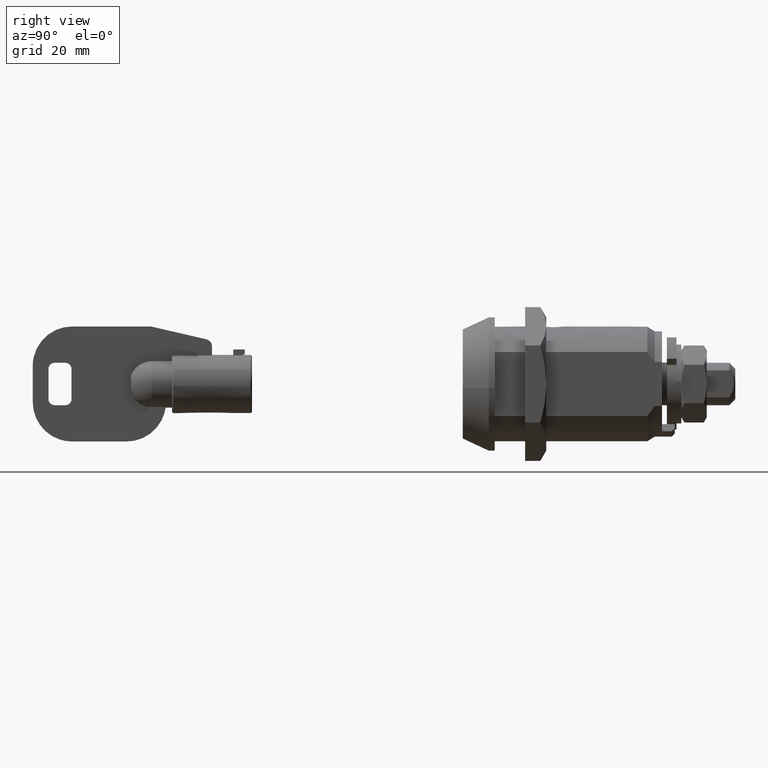
[diagram: clean part render]
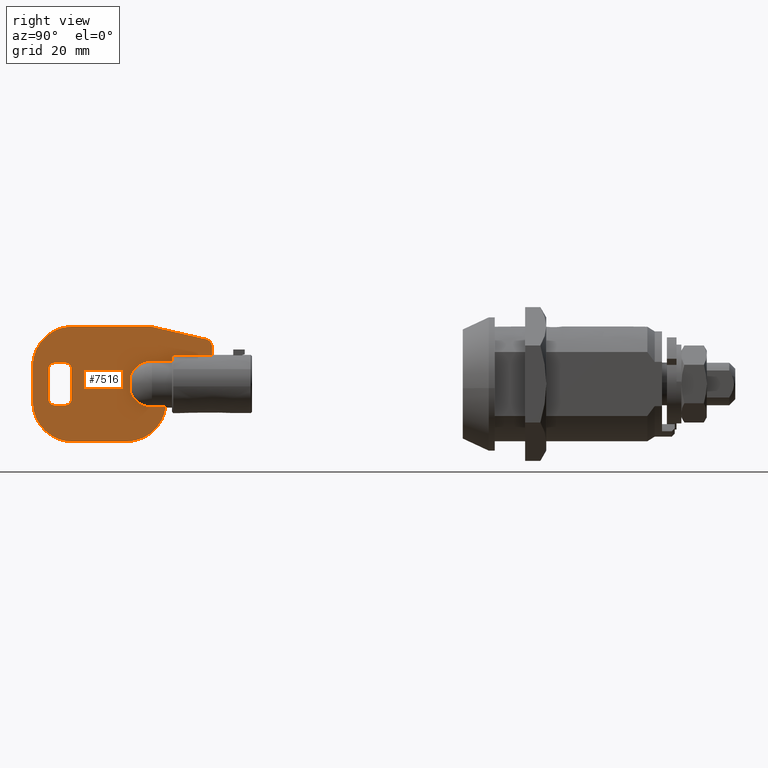
[diagram: same view with one face highlighted and labeled with its STEP entity id]
A machine part, right view. The second image highlights one B-rep face of the part: STEP entity #7516.
In plain terms, the highlighted face is a freeform B-spline surface patch.
Its self-contained STEP definition (entity closure, byte-faithful):
#5973=CARTESIAN_POINT('',(-47.788700000000013,-0.900000000000000,4.714857876982400));
#5974=VERTEX_POINT('',#5973);
#6035=CARTESIAN_POINT('',(-41.388698999723701,-0.900000000000000,4.714857876982400));
#6036=VERTEX_POINT('',#6035);
#6050=CARTESIAN_POINT('',(-47.788700000000013,-0.900000000000000,4.714857876982400));
#6051=CARTESIAN_POINT('',(-41.388698999723701,-0.900000000000000,4.714857876982400));
#6052=QUASI_UNIFORM_CURVE('',1,(#6050,#6051),.UNSPECIFIED.,.F.,.U.);
#6053=EDGE_CURVE('',#5974,#6036,#6052,.T.);
#6370=CARTESIAN_POINT('',(-64.588699000000005,-0.900000000000012,2.500000000000000));
#6371=VERTEX_POINT('',#6370);
#6377=CARTESIAN_POINT('',(-65.588698808013802,-0.900000000000012,3.500000000000000));
#6378=VERTEX_POINT('',#6377);
#6379=CARTESIAN_POINT('',(-64.588699000000005,-0.900000000000012,2.500000000000000));
#6380=CARTESIAN_POINT('',(-64.588699000000005,-0.900000000000012,3.499999808013813));
#6381=CARTESIAN_POINT('',(-65.588698808013802,-0.900000000000012,3.499999999999981));
#6389=(BOUNDED_CURVE()B_SPLINE_CURVE(2,(#6379,#6380,#6381),.UNSPECIFIED.,.F.,.U.)CURVE()GEOMETRIC_REPRESENTATION_ITEM()QUASI_UNIFORM_CURVE()RATIONAL_B_SPLINE_CURVE((1.0,0.707106849063918,1.0))REPRESENTATION_ITEM(''));
#6390=EDGE_CURVE('',#6371,#6378,#6389,.T.);
#6412=CARTESIAN_POINT('',(-64.588699000000005,-0.900000000000012,-2.500000000000200));
#6413=VERTEX_POINT('',#6412);
#6419=CARTESIAN_POINT('',(-64.588699000000005,-0.900000000000012,-2.500000000000200));
#6420=CARTESIAN_POINT('',(-64.588699000000005,-0.900000000000012,2.500000000000000));
#6421=QUASI_UNIFORM_CURVE('',1,(#6419,#6420),.UNSPECIFIED.,.F.,.U.);
#6422=EDGE_CURVE('',#6413,#6371,#6421,.T.);
#6457=CARTESIAN_POINT('',(-65.588699000000005,-0.900000000000012,-3.500000000000200));
#6458=VERTEX_POINT('',#6457);
#6464=CARTESIAN_POINT('',(-65.588699000000005,-0.900000000000012,-3.500000000000200));
#6465=CARTESIAN_POINT('',(-64.588699000000005,-0.900000000000012,-3.500000000000200));
#6466=CARTESIAN_POINT('',(-64.588699000000005,-0.900000000000012,-2.500000000000200));
#6474=(BOUNDED_CURVE()B_SPLINE_CURVE(2,(#6464,#6465,#6466),.UNSPECIFIED.,.F.,.U.)CURVE()GEOMETRIC_REPRESENTATION_ITEM()QUASI_UNIFORM_CURVE()RATIONAL_B_SPLINE_CURVE((1.0,0.707106781186548,1.0))REPRESENTATION_ITEM(''));
#6475=EDGE_CURVE('',#6458,#6413,#6474,.T.);
#6493=CARTESIAN_POINT('',(-67.388702471238901,-0.900000000000012,-3.500000000000090));
#6494=VERTEX_POINT('',#6493);
#6500=CARTESIAN_POINT('',(-67.388702471238901,-0.900000000000012,-3.500000000000090));
#6501=CARTESIAN_POINT('',(-65.588699000000005,-0.900000000000012,-3.500000000000200));
#6502=QUASI_UNIFORM_CURVE('',1,(#6500,#6501),.UNSPECIFIED.,.F.,.U.);
#6503=EDGE_CURVE('',#6494,#6458,#6502,.T.);
#6538=CARTESIAN_POINT('',(-68.388701999999995,-0.900000000000012,-2.500000000000200));
#6539=VERTEX_POINT('',#6538);
#6545=CARTESIAN_POINT('',(-68.388701999999995,-0.900000000000012,-2.500000000000200));
#6546=CARTESIAN_POINT('',(-68.388701999999981,-0.900000000000012,-3.499999528761403));
#6547=CARTESIAN_POINT('',(-67.388702471238901,-0.900000000000012,-3.500000000000089));
#6555=(BOUNDED_CURVE()B_SPLINE_CURVE(2,(#6545,#6546,#6547),.UNSPECIFIED.,.F.,.U.)CURVE()GEOMETRIC_REPRESENTATION_ITEM()QUASI_UNIFORM_CURVE()RATIONAL_B_SPLINE_CURVE((1.0,0.707106947794642,1.0))REPRESENTATION_ITEM(''));
#6556=EDGE_CURVE('',#6539,#6494,#6555,.T.);
#6574=CARTESIAN_POINT('',(-68.388701999999995,-0.900000000000012,2.500000383972435));
#6575=VERTEX_POINT('',#6574);
#6581=CARTESIAN_POINT('',(-68.388701999999995,-0.900000000000012,2.500000383972435));
#6582=CARTESIAN_POINT('',(-68.388701999999995,-0.900000000000012,-2.500000000000200));
#6583=QUASI_UNIFORM_CURVE('',1,(#6581,#6582),.UNSPECIFIED.,.F.,.U.);
#6584=EDGE_CURVE('',#6575,#6539,#6583,.T.);
#6619=CARTESIAN_POINT('',(-67.388701808013806,-0.900000000000012,3.500000000000000));
#6620=VERTEX_POINT('',#6619);
#6626=CARTESIAN_POINT('',(-67.388701808013806,-0.900000000000012,3.499999999999981));
#6627=CARTESIAN_POINT('',(-68.388701616027546,-0.900000000000012,3.500000191986135));
#6628=CARTESIAN_POINT('',(-68.388701999999924,-0.900000000000012,2.500000383972435));
#6636=(BOUNDED_CURVE()B_SPLINE_CURVE(2,(#6626,#6627,#6628),.UNSPECIFIED.,.F.,.U.)CURVE()GEOMETRIC_REPRESENTATION_ITEM()QUASI_UNIFORM_CURVE()RATIONAL_B_SPLINE_CURVE((1.0,0.707106849063932,1.0))REPRESENTATION_ITEM(''));
#6637=EDGE_CURVE('',#6620,#6575,#6636,.T.);
#6654=CARTESIAN_POINT('',(-65.588698808013802,-0.900000000000012,3.500000000000000));
#6655=CARTESIAN_POINT('',(-67.388701808013806,-0.900000000000012,3.500000000000000));
#6656=QUASI_UNIFORM_CURVE('',1,(#6654,#6655),.UNSPECIFIED.,.F.,.U.);
#6657=EDGE_CURVE('',#6378,#6620,#6656,.T.);
#6714=CARTESIAN_POINT('',(-55.488700000000001,-0.900000000000012,-9.500000000000000));
#6715=VERTEX_POINT('',#6714);
#6716=CARTESIAN_POINT('',(-49.051309351752103,-0.900000000000012,-3.900000912138290));
#6717=VERTEX_POINT('',#6716);
#6718=CARTESIAN_POINT('',(-55.488700000000001,-0.900000000000012,-9.500000000000000));
#6719=CARTESIAN_POINT('',(-49.834235938383991,-0.900000000000012,-9.499999999999998));
#6720=CARTESIAN_POINT('',(-49.051309351752053,-0.900000000000012,-3.900000912138298));
#6728=(BOUNDED_CURVE()B_SPLINE_CURVE(2,(#6718,#6719,#6720),.UNSPECIFIED.,.F.,.U.)CURVE()GEOMETRIC_REPRESENTATION_ITEM()QUASI_UNIFORM_CURVE()RATIONAL_B_SPLINE_CURVE((1.0,0.754473882513672,1.0))REPRESENTATION_ITEM(''));
#6729=EDGE_CURVE('',#6715,#6717,#6728,.T.);
#6765=CARTESIAN_POINT('',(-64.488699886553590,-0.900000000000012,-9.500000000000000));
#6766=VERTEX_POINT('',#6765);
#6767=CARTESIAN_POINT('',(-64.488699886553590,-0.900000000000012,-9.500000000000000));
#6768=CARTESIAN_POINT('',(-55.488700000000001,-0.900000000000012,-9.500000000000000));
#6769=QUASI_UNIFORM_CURVE('',1,(#6767,#6768),.UNSPECIFIED.,.F.,.U.);
#6770=EDGE_CURVE('',#6766,#6715,#6769,.T.);
#6802=CARTESIAN_POINT('',(-70.988700000000009,-0.900000000000012,-3.0));
#6803=VERTEX_POINT('',#6802);
#6804=CARTESIAN_POINT('',(-70.988700000000009,-0.900000000000012,-3.0));
#6805=CARTESIAN_POINT('',(-70.988700000000009,-0.900000000000012,-5.692388188652800));
#6806=CARTESIAN_POINT('',(-69.084894037603192,-0.900000000000012,-7.596194117821920));
#6807=CARTESIAN_POINT('',(-67.181088075206389,-0.900000000000012,-9.500000046991037));
#6808=CARTESIAN_POINT('',(-64.488699886553590,-0.900000000000012,-9.499999999999998));
#6816=(BOUNDED_CURVE()B_SPLINE_CURVE(2,(#6804,#6805,#6806,#6807,#6808),.UNSPECIFIED.,.F.,.U.)B_SPLINE_CURVE_WITH_KNOTS((3,2,3),(0.0,0.500000000000000,1.0),.UNSPECIFIED.)CURVE()GEOMETRIC_REPRESENTATION_ITEM()RATIONAL_B_SPLINE_CURVE((1.0,0.923879530841515,1.0,0.923879530841515,1.0))REPRESENTATION_ITEM(''));
#6817=EDGE_CURVE('',#6803,#6766,#6816,.T.);
#6850=CARTESIAN_POINT('',(-70.988700000000009,-0.900000000000012,3.000002495820830));
#6851=VERTEX_POINT('',#6850);
#6852=CARTESIAN_POINT('',(-70.988700000000009,-0.900000000000012,3.000002495820830));
#6853=CARTESIAN_POINT('',(-70.988700000000009,-0.900000000000012,-3.0));
#6854=QUASI_UNIFORM_CURVE('',1,(#6852,#6853),.UNSPECIFIED.,.F.,.U.);
#6855=EDGE_CURVE('',#6851,#6803,#6854,.T.);
#6887=CARTESIAN_POINT('',(-64.488699999999994,-0.900000000000012,9.500000000000000));
#6888=VERTEX_POINT('',#6887);
#6889=CARTESIAN_POINT('',(-64.488699999999994,-0.900000000000012,9.500000000000000));
#6890=CARTESIAN_POINT('',(-70.988697504179655,-0.900000000000012,9.500000000000000));
#6891=CARTESIAN_POINT('',(-70.988700000000009,-0.900000000000012,3.000002495820830));
#6899=(BOUNDED_CURVE()B_SPLINE_CURVE(2,(#6889,#6890,#6891),.UNSPECIFIED.,.F.,.U.)CURVE()GEOMETRIC_REPRESENTATION_ITEM()QUASI_UNIFORM_CURVE()RATIONAL_B_SPLINE_CURVE((1.0,0.707106916941291,1.0))REPRESENTATION_ITEM(''));
#6900=EDGE_CURVE('',#6888,#6851,#6899,.T.);
#6931=CARTESIAN_POINT('',(-51.488700000000001,-0.900000000000012,9.500000000000000));
#6932=VERTEX_POINT('',#6931);
#6933=CARTESIAN_POINT('',(-51.488700000000001,-0.900000000000012,9.500000000000000));
#6934=CARTESIAN_POINT('',(-64.488699999999994,-0.900000000000012,9.500000000000000));
#6935=QUASI_UNIFORM_CURVE('',1,(#6933,#6934),.UNSPECIFIED.,.F.,.U.);
#6936=EDGE_CURVE('',#6932,#6888,#6935,.T.);
#6959=CARTESIAN_POINT('',(-42.318793999999997,-0.900000000000012,7.382996000000000));
#6960=VERTEX_POINT('',#6959);
#6961=CARTESIAN_POINT('',(-42.318793999999997,-0.900000000000012,7.382996000000000));
#6962=CARTESIAN_POINT('',(-51.488700000000001,-0.900000000000012,9.500000000000000));
#6963=QUASI_UNIFORM_CURVE('',1,(#6961,#6962),.UNSPECIFIED.,.F.,.U.);
#6964=EDGE_CURVE('',#6960,#6932,#6963,.T.);
#6996=CARTESIAN_POINT('',(-41.388702000000002,-0.900000000000012,6.211027305242780));
#6997=VERTEX_POINT('',#6996);
#6998=CARTESIAN_POINT('',(-41.388702000000002,-0.900000000000012,6.211027305242780));
#6999=CARTESIAN_POINT('',(-41.386562576787021,-0.900000000000012,7.167777037900753));
#7000=CARTESIAN_POINT('',(-42.318793999999997,-0.900000000000012,7.382995999999991));
#7008=(BOUNDED_CURVE()B_SPLINE_CURVE(2,(#6998,#6999,#7000),.UNSPECIFIED.,.F.,.U.)CURVE()GEOMETRIC_REPRESENTATION_ITEM()QUASI_UNIFORM_CURVE()RATIONAL_B_SPLINE_CURVE((1.0,0.781910505873954,1.0))REPRESENTATION_ITEM(''));
#7009=EDGE_CURVE('',#6997,#6960,#7008,.T.);
#7040=CARTESIAN_POINT('',(-41.388698999723701,-0.900000000000000,4.714857876982400));
#7041=CARTESIAN_POINT('',(-41.388702000000002,-0.900000000000012,6.211027305242780));
#7042=QUASI_UNIFORM_CURVE('',1,(#7040,#7041),.UNSPECIFIED.,.F.,.U.);
#7043=EDGE_CURVE('',#6036,#6997,#7042,.T.);
#7061=CARTESIAN_POINT('',(-49.051309917129899,-0.900000000000000,-3.794727025760245));
#7062=VERTEX_POINT('',#7061);
#7076=CARTESIAN_POINT('',(-49.051309351752103,-0.900000000000012,-3.900000912138290));
#7077=CARTESIAN_POINT('',(-49.051309917129899,-0.900000000000000,-3.794727025760245));
#7078=QUASI_UNIFORM_CURVE('',1,(#7076,#7077),.UNSPECIFIED.,.F.,.U.);
#7079=EDGE_CURVE('',#6717,#7062,#7078,.T.);
#7126=CARTESIAN_POINT('',(-51.295544049972499,-0.900000000000000,-3.794727025760245));
#7127=VERTEX_POINT('',#7126);
#7128=CARTESIAN_POINT('',(-51.295544049972499,-0.900000000000000,3.794727025760245));
#7129=VERTEX_POINT('',#7128);
#7145=CARTESIAN_POINT('',(-54.788702999999998,-0.900000000000000,1.466287829861500));
#7146=VERTEX_POINT('',#7145);
#7147=CARTESIAN_POINT('',(-51.295544049972499,-0.900000000000000,3.794727025760246));
#7148=CARTESIAN_POINT('',(-53.815131056798990,-0.900000000000000,3.790184770017805));
#7149=CARTESIAN_POINT('',(-54.788702999999998,-0.900000000000000,1.466287829861502));
#7157=(BOUNDED_CURVE()B_SPLINE_CURVE(2,(#7147,#7148,#7149),.UNSPECIFIED.,.F.,.U.)CURVE()GEOMETRIC_REPRESENTATION_ITEM()QUASI_UNIFORM_CURVE()RATIONAL_B_SPLINE_CURVE((1.0,0.833085499197415,1.0))REPRESENTATION_ITEM(''));
#7158=EDGE_CURVE('',#7129,#7146,#7157,.T.);
#7160=CARTESIAN_POINT('',(-54.788702999999998,-0.900000000000000,-1.466287829861510));
#7161=VERTEX_POINT('',#7160);
#7177=CARTESIAN_POINT('',(-54.788703000000012,-0.900000000000000,-1.466287829861510));
#7178=CARTESIAN_POINT('',(-53.815131056798990,-0.900000000000000,-3.790184770017824));
#7179=CARTESIAN_POINT('',(-51.295544049972499,-0.900000000000000,-3.794727025760265));
#7187=(BOUNDED_CURVE()B_SPLINE_CURVE(2,(#7177,#7178,#7179),.UNSPECIFIED.,.F.,.U.)CURVE()GEOMETRIC_REPRESENTATION_ITEM()QUASI_UNIFORM_CURVE()RATIONAL_B_SPLINE_CURVE((1.0,0.833085499197414,1.0))REPRESENTATION_ITEM(''));
#7188=EDGE_CURVE('',#7161,#7127,#7187,.T.);
#7198=CARTESIAN_POINT('',(-54.788702999999998,-0.900000000000000,-1.466287829861510));
#7199=CARTESIAN_POINT('',(-54.788702999999998,-0.900000000000000,1.466287829861500));
#7200=QUASI_UNIFORM_CURVE('',1,(#7198,#7199),.UNSPECIFIED.,.F.,.U.);
#7201=EDGE_CURVE('',#7161,#7146,#7200,.T.);
#7235=CARTESIAN_POINT('',(-47.988700000000001,-0.900000000000000,4.511085190964931));
#7236=VERTEX_POINT('',#7235);
#7266=CARTESIAN_POINT('',(-47.988700000000001,-0.900000000000000,4.511085190964929));
#7267=CARTESIAN_POINT('',(-47.922061814674052,-0.900000000000000,4.579036657156498));
#7268=CARTESIAN_POINT('',(-47.855393939864562,-0.900000000000000,4.646959730447509));
#7269=CARTESIAN_POINT('',(-47.788700000000013,-0.900000000000000,4.714857876982400));
#7270=QUASI_UNIFORM_CURVE('',3,(#7266,#7267,#7268,#7269),.UNSPECIFIED.,.F.,.U.);
#7271=EDGE_CURVE('',#7236,#5974,#7270,.T.);
#7283=CARTESIAN_POINT('',(-47.988700000000001,-0.900000000000000,3.794727025760245));
#7284=VERTEX_POINT('',#7283);
#7310=CARTESIAN_POINT('',(-47.988700000000001,-0.900000000000000,3.794727025760245));
#7311=CARTESIAN_POINT('',(-47.988700000000001,-0.900000000000000,4.511085190964931));
#7312=QUASI_UNIFORM_CURVE('',1,(#7310,#7311),.UNSPECIFIED.,.F.,.U.);
#7313=EDGE_CURVE('',#7284,#7236,#7312,.T.);
#7369=CARTESIAN_POINT('',(-51.295544049972499,-0.900000000000000,3.794727025760245));
#7370=CARTESIAN_POINT('',(-47.988700000000001,-0.900000000000000,3.794727025760245));
#7371=QUASI_UNIFORM_CURVE('',1,(#7369,#7370),.UNSPECIFIED.,.F.,.U.);
#7372=EDGE_CURVE('',#7129,#7284,#7371,.T.);
#7375=CARTESIAN_POINT('',(-49.051309917129899,-0.900000000000000,-3.794727025760245));
#7376=CARTESIAN_POINT('',(-51.295544049972499,-0.900000000000000,-3.794727025760245));
#7377=QUASI_UNIFORM_CURVE('',1,(#7375,#7376),.UNSPECIFIED.,.F.,.U.);
#7378=EDGE_CURVE('',#7062,#7127,#7377,.T.);
#7481=CARTESIAN_POINT('',(-72.467221104047795,-0.900000000000000,-10.449049963174311));
#7482=CARTESIAN_POINT('',(-39.910178160320562,-0.900000000000000,-10.449049963174311));
#7483=CARTESIAN_POINT('',(-72.467221104047795,-0.900000000000000,10.449050472794021));
#7484=CARTESIAN_POINT('',(-39.910178160320562,-0.900000000000000,10.449050472794021));
#7485=B_SPLINE_SURFACE_WITH_KNOTS('',1,1,((#7481,#7483),(#7482,#7484)),.UNSPECIFIED.,.F.,.F.,.U.,(2,2),(2,2),(0.0,32.557042943727240),(0.0,20.898100435968342),.UNSPECIFIED.);
#7486=ORIENTED_EDGE('',*,*,#7079,.T.);
#7487=ORIENTED_EDGE('',*,*,#7378,.T.);
#7488=ORIENTED_EDGE('',*,*,#7188,.F.);
#7489=ORIENTED_EDGE('',*,*,#7201,.T.);
#7490=ORIENTED_EDGE('',*,*,#7158,.F.);
#7491=ORIENTED_EDGE('',*,*,#7372,.T.);
#7492=ORIENTED_EDGE('',*,*,#7313,.T.);
#7493=ORIENTED_EDGE('',*,*,#7271,.T.);
#7494=ORIENTED_EDGE('',*,*,#6053,.T.);
#7495=ORIENTED_EDGE('',*,*,#7043,.T.);
#7496=ORIENTED_EDGE('',*,*,#7009,.T.);
#7497=ORIENTED_EDGE('',*,*,#6964,.T.);
#7498=ORIENTED_EDGE('',*,*,#6936,.T.);
#7499=ORIENTED_EDGE('',*,*,#6900,.T.);
#7500=ORIENTED_EDGE('',*,*,#6855,.T.);
#7501=ORIENTED_EDGE('',*,*,#6817,.T.);
#7502=ORIENTED_EDGE('',*,*,#6770,.T.);
#7503=ORIENTED_EDGE('',*,*,#6729,.T.);
#7504=EDGE_LOOP('',(#7486,#7487,#7488,#7489,#7490,#7491,#7492,#7493,#7494,#7495,#7496,#7497,#7498,#7499,#7500,#7501,#7502,#7503));
#7505=FACE_OUTER_BOUND('',#7504,.T.);
#7506=ORIENTED_EDGE('',*,*,#6637,.F.);
#7507=ORIENTED_EDGE('',*,*,#6657,.F.);
#7508=ORIENTED_EDGE('',*,*,#6390,.F.);
#7509=ORIENTED_EDGE('',*,*,#6422,.F.);
#7510=ORIENTED_EDGE('',*,*,#6475,.F.);
#7511=ORIENTED_EDGE('',*,*,#6503,.F.);
#7512=ORIENTED_EDGE('',*,*,#6556,.F.);
#7513=ORIENTED_EDGE('',*,*,#6584,.F.);
#7514=EDGE_LOOP('',(#7506,#7507,#7508,#7509,#7510,#7511,#7512,#7513));
#7515=FACE_BOUND('',#7514,.T.);
#7516=ADVANCED_FACE('',(#7505,#7515),#7485,.T.);